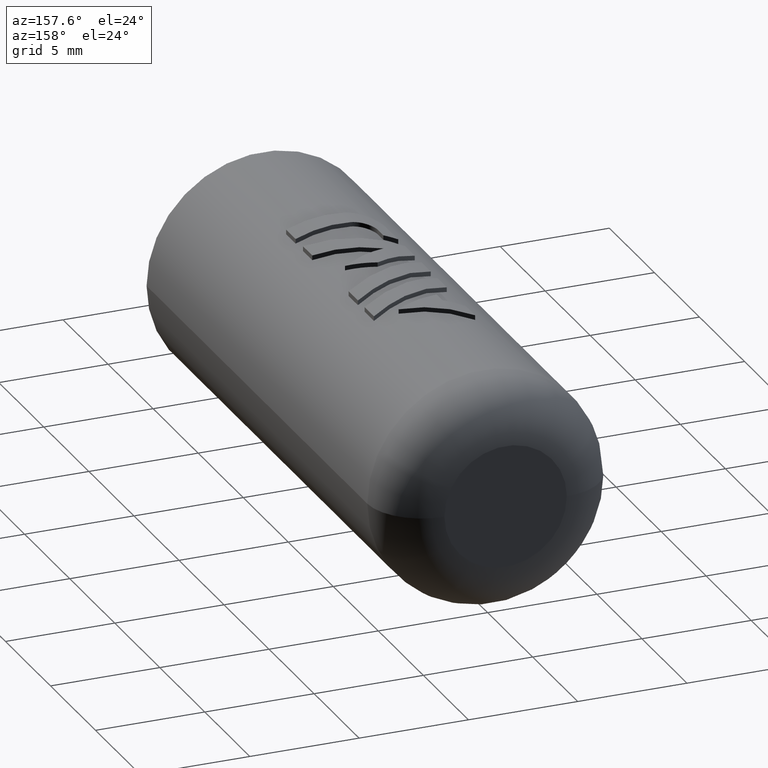
[diagram: clean part render]
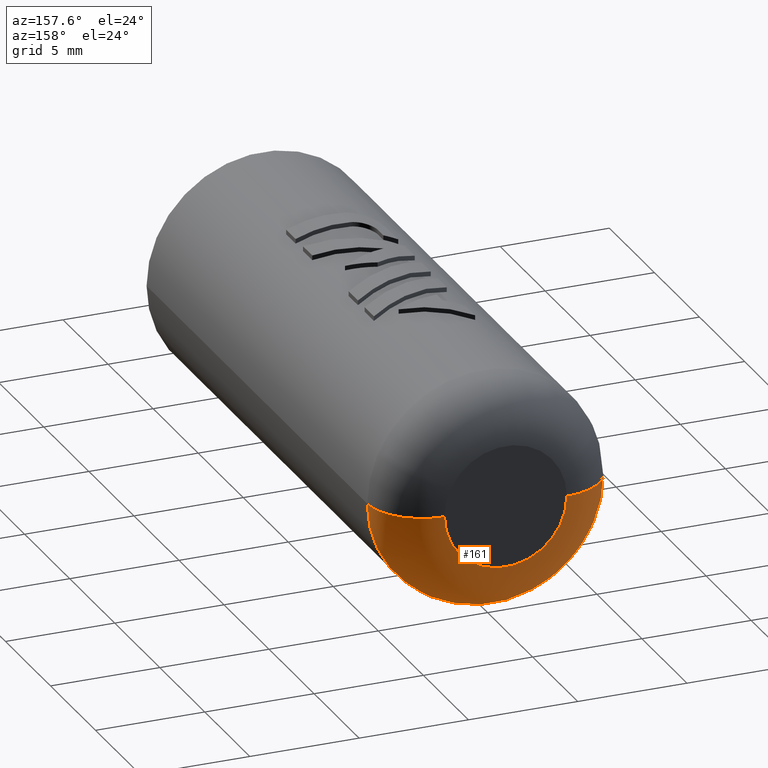
[diagram: same view with one face highlighted and labeled with its STEP entity id]
A machine part, auxiliary view. The second image highlights one B-rep face of the part: STEP entity #161.
In plain terms, the highlighted toroidal blend (fillet) surface has major radius 2.8 mm and minor (blend) radius 2.5 mm.
Its self-contained STEP definition (entity closure, byte-faithful):
#161=ADVANCED_FACE('',(#328),#329,.T.);
#328=FACE_OUTER_BOUND('',#2159,.T.);
#329=TOROIDAL_SURFACE('',#2160,2.8,2.5);
#2159=EDGE_LOOP('',(#2802,#2803,#2804,#2805));
#2160=AXIS2_PLACEMENT_3D('',#2806,#2807,#2808);
#2802=ORIENTED_EDGE('',*,*,#2866,.T.);
#2803=ORIENTED_EDGE('',*,*,#2873,.F.);
#2804=ORIENTED_EDGE('',*,*,#2868,.T.);
#2805=ORIENTED_EDGE('',*,*,#3058,.T.);
#2806=CARTESIAN_POINT('',(0.0,24.5,0.0));
#2807=DIRECTION('',(0.0,-1.0,0.0));
#2808=DIRECTION('',(1.0,0.0,-6.12323399573677E-17));
#2866=EDGE_CURVE('',#3092,#3093,#3094,.T.);
#2868=EDGE_CURVE('',#3097,#3095,#3098,.T.);
#2873=EDGE_CURVE('',#3097,#3093,#3105,.T.);
#3058=EDGE_CURVE('',#3095,#3092,#3411,.T.);
#3092=VERTEX_POINT('',#4298);
#3093=VERTEX_POINT('',#4299);
#3094=CIRCLE('',#4300,2.5);
#3095=VERTEX_POINT('',#4301);
#3097=VERTEX_POINT('',#4303);
#3098=CIRCLE('',#4304,2.5);
#3105=CIRCLE('',#4313,5.3);
#3411=CIRCLE('',#4727,2.8);
#4298=CARTESIAN_POINT('',(2.8,27.0,-1.7145055188063E-16));
#4299=CARTESIAN_POINT('',(5.3,24.5,-3.24531401774049E-16));
#4300=AXIS2_PLACEMENT_3D('',#4750,#4751,#4752);
#4301=CARTESIAN_POINT('',(-2.8,27.0,5.14351655641888E-16));
#4303=CARTESIAN_POINT('',(-5.3,24.5,-3.24531401774048E-16));
#4304=AXIS2_PLACEMENT_3D('',#4756,#4757,#4758);
#4313=AXIS2_PLACEMENT_3D('',#4767,#4768,#4769);
#4727=AXIS2_PLACEMENT_3D('',#5150,#5151,#5152);
#4750=CARTESIAN_POINT('',(2.8,24.5,-5.14351655641888E-16));
#4751=DIRECTION('',(-1.83697019872103E-16,-0.0,-1.0));
#4752=DIRECTION('',(1.0,0.0,-1.83697019872103E-16));
#4756=CARTESIAN_POINT('',(-2.8,24.5,5.14351655641888E-16));
#4757=DIRECTION('',(-1.83697019872103E-16,0.0,-1.0));
#4758=DIRECTION('',(-1.0,0.0,1.83697019872103E-16));
#4767=CARTESIAN_POINT('',(0.0,24.5,0.0));
#4768=DIRECTION('',(0.0,-1.0,0.0));
#4769=DIRECTION('',(1.0,0.0,-6.12323399573677E-17));
#5150=CARTESIAN_POINT('',(0.0,27.0,0.0));
#5151=DIRECTION('',(0.0,-1.0,0.0));
#5152=DIRECTION('',(1.0,0.0,-6.12323399573677E-17));